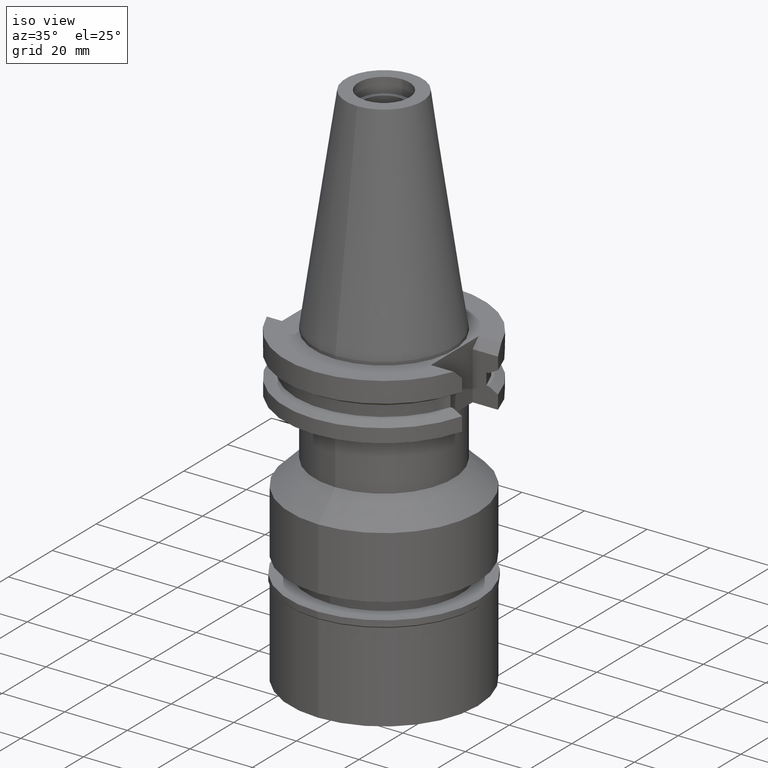
[diagram: clean part render]
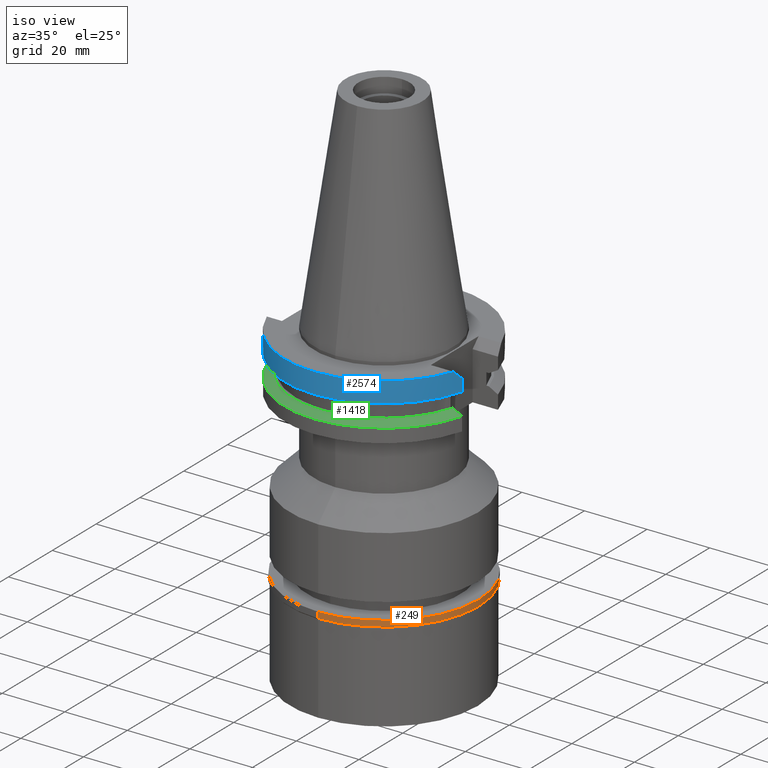
[diagram: same view with three faces highlighted in distinct colors, each labeled with its STEP entity id]
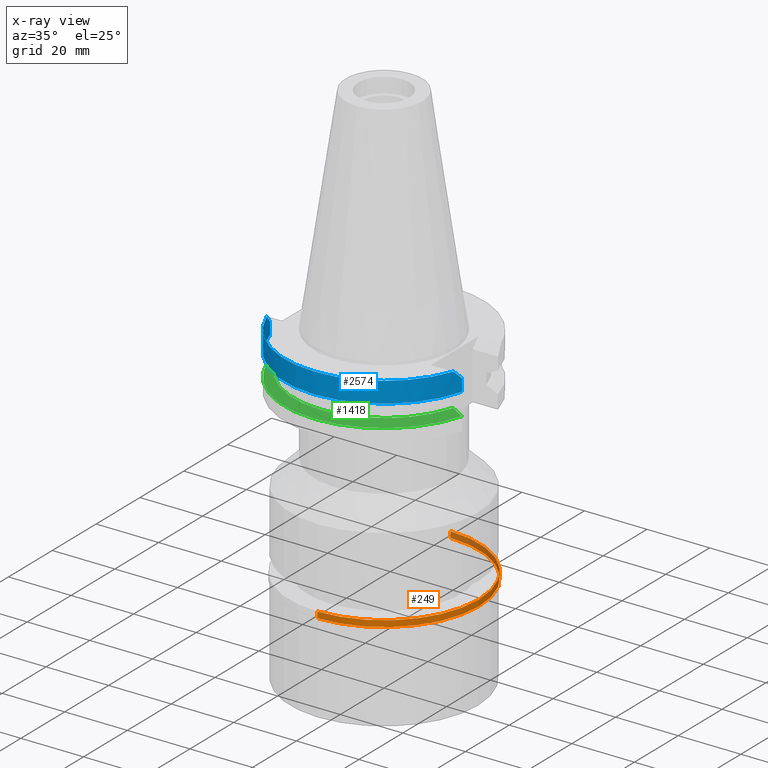
[diagram: x-ray of the same camera — body ghosted, the three highlighted faces saturated]
A machine part, iso view with three faces highlighted in distinct colors.
The next image is the same camera in x-ray (body ghosted, the three faces saturated) — at least one of them is partly hidden behind the body in this view.
Their STEP definitions:

[orange] entity #249 — the highlighted cylindrical surface (partial cylindrical patch) has radius 30.35 mm, axis along (0, 0, -1).
#32 = LINE ( 'NONE', #568, #1230 ) ;
#140 = CYLINDRICAL_SURFACE ( 'NONE', #1263, 30.34999999999999787 ) ;
#249 = ADVANCED_FACE ( 'NONE', ( #2903 ), #140, .T. ) ;
#251 = CARTESIAN_POINT ( 'NONE',  ( 0.0000000000000000000, 0.0000000000000000000, -1.949999999999999956 ) ) ;
#285 = VERTEX_POINT ( 'NONE', #2344 ) ;
#527 = CIRCLE ( 'NONE', #2146, 30.34999999999999787 ) ;
#568 = CARTESIAN_POINT ( 'NONE',  ( 0.0000000000000000000, 30.34999999999999787, 0.0000000000000000000 ) ) ;
#632 = CARTESIAN_POINT ( 'NONE',  ( 0.0000000000000000000, -30.34999999999999787, -1.949999999999999956 ) ) ;
#680 = AXIS2_PLACEMENT_3D ( 'NONE', #251, #2912, #2142 ) ;
#705 = CARTESIAN_POINT ( 'NONE',  ( 0.0000000000000000000, 0.0000000000000000000, 0.0000000000000000000 ) ) ;
#716 = DIRECTION ( 'NONE',  ( 0.0000000000000000000, 0.0000000000000000000, -1.000000000000000000 ) ) ;
#758 = VERTEX_POINT ( 'NONE', #1462 ) ;
#1015 = EDGE_CURVE ( 'NONE', #2753, #758, #527, .T. ) ;
#1118 = DIRECTION ( 'NONE',  ( 0.0000000000000000000, -1.000000000000000000, 0.0000000000000000000 ) ) ;
#1176 = LINE ( 'NONE', #1628, #2471 ) ;
#1195 = EDGE_LOOP ( 'NONE', ( #2543, #2281, #3118, #1926 ) ) ;
#1227 = CARTESIAN_POINT ( 'NONE',  ( 0.0000000000000000000, 30.34999999999999787, 0.0000000000000000000 ) ) ;
#1230 = VECTOR ( 'NONE', #1793, 1000.000000000000000 ) ;
#1263 = AXIS2_PLACEMENT_3D ( 'NONE', #705, #1687, #1118 ) ;
#1267 = EDGE_CURVE ( 'NONE', #2753, #285, #32, .T. ) ;
#1415 = DIRECTION ( 'NONE',  ( 0.0000000000000000000, 0.0000000000000000000, -1.000000000000000000 ) ) ;
#1462 = CARTESIAN_POINT ( 'NONE',  ( 0.0000000000000000000, -30.34999999999999787, 0.0000000000000000000 ) ) ;
#1609 = EDGE_CURVE ( 'NONE', #1995, #285, #2620, .T. ) ;
#1628 = CARTESIAN_POINT ( 'NONE',  ( 0.0000000000000000000, -30.34999999999999787, 0.0000000000000000000 ) ) ;
#1687 = DIRECTION ( 'NONE',  ( 0.0000000000000000000, 0.0000000000000000000, -1.000000000000000000 ) ) ;
#1793 = DIRECTION ( 'NONE',  ( 0.0000000000000000000, 0.0000000000000000000, -1.000000000000000000 ) ) ;
#1884 = CARTESIAN_POINT ( 'NONE',  ( 0.0000000000000000000, 0.0000000000000000000, 0.0000000000000000000 ) ) ;
#1917 = DIRECTION ( 'NONE',  ( 0.0000000000000000000, 1.000000000000000000, 0.0000000000000000000 ) ) ;
#1926 = ORIENTED_EDGE ( 'NONE', *, *, #1267, .F. ) ;
#1995 = VERTEX_POINT ( 'NONE', #632 ) ;
#2142 = DIRECTION ( 'NONE',  ( 0.0000000000000000000, -1.000000000000000000, 0.0000000000000000000 ) ) ;
#2146 = AXIS2_PLACEMENT_3D ( 'NONE', #1884, #1415, #1917 ) ;
#2281 = ORIENTED_EDGE ( 'NONE', *, *, #3135, .T. ) ;
#2344 = CARTESIAN_POINT ( 'NONE',  ( 0.0000000000000000000, 30.34999999999999787, -1.949999999999999956 ) ) ;
#2471 = VECTOR ( 'NONE', #716, 1000.000000000000000 ) ;
#2543 = ORIENTED_EDGE ( 'NONE', *, *, #1015, .T. ) ;
#2620 = CIRCLE ( 'NONE', #680, 30.34999999999999787 ) ;
#2753 = VERTEX_POINT ( 'NONE', #1227 ) ;
#2903 = FACE_OUTER_BOUND ( 'NONE', #1195, .T. ) ;
#2912 = DIRECTION ( 'NONE',  ( 0.0000000000000000000, 0.0000000000000000000, 1.000000000000000000 ) ) ;
#3118 = ORIENTED_EDGE ( 'NONE', *, *, #1609, .T. ) ;
#3135 = EDGE_CURVE ( 'NONE', #758, #1995, #1176, .T. ) ;

[blue] entity #2574 — the highlighted cylindrical surface (partial cylindrical patch) has radius 31.75 mm, axis along (0, 0, -1).
#135 = VERTEX_POINT ( 'NONE', #1135 ) ;
#193 = DIRECTION ( 'NONE',  ( 0.0000000000000000000, 0.0000000000000000000, 1.000000000000000000 ) ) ;
#223 = AXIS2_PLACEMENT_3D ( 'NONE', #721, #696, #959 ) ;
#263 = CARTESIAN_POINT ( 'NONE',  ( 30.67550146397999811, -8.190000606435999586, -7.601327811462999406 ) ) ;
#386 = DIRECTION ( 'NONE',  ( 0.0000000000000000000, -1.000000000000000000, 0.0000000000000000000 ) ) ;
#433 = CIRCLE ( 'NONE', #2470, 31.74999999999998579 ) ;
#450 = EDGE_CURVE ( 'NONE', #2681, #860, #914, .T. ) ;
#570 = LINE ( 'NONE', #1965, #1443 ) ;
#575 = CARTESIAN_POINT ( 'NONE',  ( -29.82399034335000110, -10.89000000000000057, -1.000000000001000089 ) ) ;
#696 = DIRECTION ( 'NONE',  ( 0.0000000000000000000, 0.0000000000000000000, -1.000000000000000000 ) ) ;
#721 = CARTESIAN_POINT ( 'NONE',  ( 0.0000000000000000000, 2.157429649887999992E-14, 76.16750000000000398 ) ) ;
#755 = DIRECTION ( 'NONE',  ( 8.605639806216995609E-09, -3.223182371186998761E-08, 0.9999999999999994449 ) ) ;
#860 = VERTEX_POINT ( 'NONE', #1083 ) ;
#868 = VECTOR ( 'NONE', #755, 1000.000000000000114 ) ;
#914 = CIRCLE ( 'NONE', #1316, 31.75000000000000000 ) ;
#916 = EDGE_CURVE ( 'NONE', #3010, #1625, #570, .T. ) ;
#947 = CARTESIAN_POINT ( 'NONE',  ( 29.82399034335000110, -10.89000000000000057, -1.000000000001000089 ) ) ;
#959 = DIRECTION ( 'NONE',  ( 0.0000000000000000000, -1.000000000000000000, 0.0000000000000000000 ) ) ;
#1021 = CARTESIAN_POINT ( 'NONE',  ( -30.67550165945999652, -8.189999874253000911, -7.601334354651999803 ) ) ;
#1057 = ORIENTED_EDGE ( 'NONE', *, *, #450, .T. ) ;
#1062 = DIRECTION ( 'NONE',  ( -4.150145572782944966E-08, -1.554434098874979866E-07, -0.9999999999999870104 ) ) ;
#1079 = EDGE_CURVE ( 'NONE', #2226, #135, #2444, .T. ) ;
#1083 = CARTESIAN_POINT ( 'NONE',  ( -29.82399034335000110, -10.89000000000000057, -1.000000000001000089 ) ) ;
#1135 = CARTESIAN_POINT ( 'NONE',  ( -30.67550162588999640, -8.189999999999999503, -3.700000000000000178 ) ) ;
#1316 = AXIS2_PLACEMENT_3D ( 'NONE', #2062, #1373, #386 ) ;
#1373 = DIRECTION ( 'NONE',  ( 0.0000000000000000000, 0.0000000000000000000, -1.000000000000000000 ) ) ;
#1443 = VECTOR ( 'NONE', #1062, 1000.000000000000227 ) ;
#1527 = ORIENTED_EDGE ( 'NONE', *, *, #2989, .F. ) ;
#1583 = ORIENTED_EDGE ( 'NONE', *, *, #1591, .F. ) ;
#1591 = EDGE_CURVE ( 'NONE', #2681, #3010, #2861, .T. ) ;
#1625 = VERTEX_POINT ( 'NONE', #263 ) ;
#1694 = CARTESIAN_POINT ( 'NONE',  ( 30.67550162588999640, -8.189999999999999503, -3.700000000000000178 ) ) ;
#1844 = CARTESIAN_POINT ( 'NONE',  ( -30.67550162588999640, -8.189999999999999503, -3.700000000000000178 ) ) ;
#1937 = CARTESIAN_POINT ( 'NONE',  ( 29.82399034335000110, -10.89000000000000057, -1.000000000001000089 ) ) ;
#1965 = CARTESIAN_POINT ( 'NONE',  ( 30.67550162588999640, -8.189999999999999503, -3.700000000000000178 ) ) ;
#1968 = DIRECTION ( 'NONE',  ( -0.9661575315241073270, -0.2579527559055020958, 0.0000000000000000000 ) ) ;
#2062 = CARTESIAN_POINT ( 'NONE',  ( 0.0000000000000000000, 2.157429649887999992E-14, -0.9999999999999000799 ) ) ;
#2115 = EDGE_LOOP ( 'NONE', ( #1583, #1057, #1527, #3093, #2766, #2448 ) ) ;
#2149 = CARTESIAN_POINT ( 'NONE',  ( 30.67550162588999640, -8.189999999999999503, -3.700000000000000178 ) ) ;
#2157 = FACE_OUTER_BOUND ( 'NONE', #2115, .T. ) ;
#2226 = VERTEX_POINT ( 'NONE', #1021 ) ;
#2388 = CARTESIAN_POINT ( 'NONE',  ( 0.0000000000000000000, 1.121722380078999823E-14, -7.601333230925999551 ) ) ;
#2389 = B_SPLINE_CURVE_WITH_KNOTS ( 'NONE', 3,
 ( #1844, #2838, #2594, #575 ),
 .UNSPECIFIED., .F., .F.,
 ( 4, 4 ),
 ( 0.0000000000000000000, 1.000000000000000000 ),
 .UNSPECIFIED. ) ;
#2444 = LINE ( 'NONE', #2955, #868 ) ;
#2448 = ORIENTED_EDGE ( 'NONE', *, *, #916, .F. ) ;
#2457 = CARTESIAN_POINT ( 'NONE',  ( 30.43183015827552396, -9.102667216255303728, -2.787332783744696840 ) ) ;
#2470 = AXIS2_PLACEMENT_3D ( 'NONE', #2388, #193, #1968 ) ;
#2574 = ADVANCED_FACE ( 'NONE', ( #2157 ), #2615, .T. ) ;
#2594 = CARTESIAN_POINT ( 'NONE',  ( -30.14799306409551960, -10.00266721625513888, -1.887332783744861908 ) ) ;
#2615 = CYLINDRICAL_SURFACE ( 'NONE', #223, 31.75000000000000000 ) ;
#2681 = VERTEX_POINT ( 'NONE', #947 ) ;
#2725 = EDGE_CURVE ( 'NONE', #2226, #1625, #433, .T. ) ;
#2766 = ORIENTED_EDGE ( 'NONE', *, *, #2725, .T. ) ;
#2838 = CARTESIAN_POINT ( 'NONE',  ( -30.43183015827552040, -9.102667216255303728, -2.787332783744696840 ) ) ;
#2861 = B_SPLINE_CURVE_WITH_KNOTS ( 'NONE', 3,
 ( #1937, #2897, #2457, #1694 ),
 .UNSPECIFIED., .F., .F.,
 ( 4, 4 ),
 ( 0.0000000000000000000, 1.000000000000000000 ),
 .UNSPECIFIED. ) ;
#2897 = CARTESIAN_POINT ( 'NONE',  ( 30.14799306409552671, -10.00266721625513888, -1.887332783744861908 ) ) ;
#2955 = CARTESIAN_POINT ( 'NONE',  ( -30.67550165945999652, -8.189999874253000911, -7.601334354651999803 ) ) ;
#2989 = EDGE_CURVE ( 'NONE', #135, #860, #2389, .T. ) ;
#3010 = VERTEX_POINT ( 'NONE', #2149 ) ;
#3093 = ORIENTED_EDGE ( 'NONE', *, *, #1079, .F. ) ;

[green] entity #1418 — the highlighted conical surface has half-angle 60 deg.
#53 = VERTEX_POINT ( 'NONE', #2049 ) ;
#237 = CARTESIAN_POINT ( 'NONE',  ( -27.78617704743999894, -8.189999360204000212, -13.04749999999999943 ) ) ;
#265 = EDGE_CURVE ( 'NONE', #693, #53, #2868, .T. ) ;
#271 = CARTESIAN_POINT ( 'NONE',  ( 27.78616453852999868, -8.190000190918999223, -13.04749999999999943 ) ) ;
#410 = CARTESIAN_POINT ( 'NONE',  ( 0.0000000000000000000, 1.055026073064999954E-14, -13.85058338454000015 ) ) ;
#416 = ORIENTED_EDGE ( 'NONE', *, *, #2810, .F. ) ;
#501 = CARTESIAN_POINT ( 'NONE',  ( 30.67550146397999811, -8.190000606430000829, -14.65367218825000073 ) ) ;
#693 = VERTEX_POINT ( 'NONE', #2851 ) ;
#893 = DIRECTION ( 'NONE',  ( 0.0000000000000000000, 0.0000000000000000000, -1.000000000000000000 ) ) ;
#949 = CARTESIAN_POINT ( 'NONE',  ( -29.69463352125000100, -8.189999973377000586, -14.10691908956000162 ) ) ;
#992 = CARTESIAN_POINT ( 'NONE',  ( 0.0000000000000000000, 1.055026073064999954E-14, -14.65366676908000088 ) ) ;
#1003 = ORIENTED_EDGE ( 'NONE', *, *, #265, .T. ) ;
#1074 = ORIENTED_EDGE ( 'NONE', *, *, #2726, .F. ) ;
#1145 = FACE_OUTER_BOUND ( 'NONE', #1579, .T. ) ;
#1184 = CARTESIAN_POINT ( 'NONE',  ( -30.34685211323999710, -8.189999874250000644, -14.47034121054999822 ) ) ;
#1240 = CARTESIAN_POINT ( 'NONE',  ( 30.34684598100999864, -8.190000606430000829, -14.47034444536000031 ) ) ;
#1269 = CARTESIAN_POINT ( 'NONE',  ( 29.69463186846000013, -8.189999742455000842, -14.10691550687000095 ) ) ;
#1355 = VERTEX_POINT ( 'NONE', #2809 ) ;
#1370 = B_SPLINE_CURVE_WITH_KNOTS ( 'NONE', 3,
 ( #2378, #1184, #949, #2408, #3112, #237 ),
 .UNSPECIFIED., .F., .F.,
 ( 4, 1, 1, 4 ),
 ( 0.0000000000000000000, 0.3333333333333000081, 0.6666666666667000474, 1.000000000000000000 ),
 .UNSPECIFIED. ) ;
#1403 = CIRCLE ( 'NONE', #3140, 31.74999999999998579 ) ;
#1404 = DIRECTION ( 'NONE',  ( 0.0000000000000000000, -1.000000000000000000, 0.0000000000000000000 ) ) ;
#1418 = ADVANCED_FACE ( 'NONE', ( #1145 ), #1542, .T. ) ;
#1542 = CONICAL_SURFACE ( 'NONE', #2931, 30.35901877526999826, 1.047197551196400456 ) ;
#1579 = EDGE_LOOP ( 'NONE', ( #1074, #1003, #2156, #416 ) ) ;
#1669 = B_SPLINE_CURVE_WITH_KNOTS ( 'NONE', 3,
 ( #271, #2992, #2960, #1269, #1240, #1717 ),
 .UNSPECIFIED., .F., .F.,
 ( 4, 1, 1, 4 ),
 ( 0.0000000000000000000, 0.3333333333333000081, 0.6666666666667000474, 1.000000000000000000 ),
 .UNSPECIFIED. ) ;
#1717 = CARTESIAN_POINT ( 'NONE',  ( 30.67550146397999811, -8.190000606430000829, -14.65367218825000073 ) ) ;
#1879 = AXIS2_PLACEMENT_3D ( 'NONE', #3094, #893, #2859 ) ;
#1980 = DIRECTION ( 'NONE',  ( 0.0000000000000000000, 0.0000000000000000000, -1.000000000000000000 ) ) ;
#2049 = CARTESIAN_POINT ( 'NONE',  ( -27.78617704743999894, -8.189999360204000212, -13.04749999999999943 ) ) ;
#2156 = ORIENTED_EDGE ( 'NONE', *, *, #2163, .F. ) ;
#2163 = EDGE_CURVE ( 'NONE', #1355, #53, #1370, .T. ) ;
#2176 = VERTEX_POINT ( 'NONE', #501 ) ;
#2378 = CARTESIAN_POINT ( 'NONE',  ( -30.67550165945999652, -8.189999874250000644, -14.65366564536000205 ) ) ;
#2408 = CARTESIAN_POINT ( 'NONE',  ( -28.73153504609999942, -8.190000281805000171, -13.57151191714000049 ) ) ;
#2726 = EDGE_CURVE ( 'NONE', #693, #2176, #1669, .T. ) ;
#2739 = DIRECTION ( 'NONE',  ( 0.9661575315241073270, -0.2579527559055020958, 0.0000000000000000000 ) ) ;
#2809 = CARTESIAN_POINT ( 'NONE',  ( -30.67550165945999652, -8.189999874250000644, -14.65366564536000205 ) ) ;
#2810 = EDGE_CURVE ( 'NONE', #2176, #1355, #1403, .T. ) ;
#2830 = DIRECTION ( 'NONE',  ( 0.0000000000000000000, 0.0000000000000000000, -1.000000000000000000 ) ) ;
#2851 = CARTESIAN_POINT ( 'NONE',  ( 27.78616453852999868, -8.190000190918999223, -13.04749999999999943 ) ) ;
#2859 = DIRECTION ( 'NONE',  ( 0.0000000000000000000, -1.000000000000000000, 0.0000000000000000000 ) ) ;
#2868 = CIRCLE ( 'NONE', #1879, 28.96803755052999918 ) ;
#2931 = AXIS2_PLACEMENT_3D ( 'NONE', #410, #2830, #1404 ) ;
#2960 = CARTESIAN_POINT ( 'NONE',  ( 28.73152984912999841, -8.189999991762000775, -13.57150619388000123 ) ) ;
#2992 = CARTESIAN_POINT ( 'NONE',  ( 28.09960208757999922, -8.190000190918999223, -13.22108011267000016 ) ) ;
#3094 = CARTESIAN_POINT ( 'NONE',  ( 0.0000000000000000000, 1.055026073064999954E-14, -13.04749999999999943 ) ) ;
#3112 = CARTESIAN_POINT ( 'NONE',  ( -28.09960227012999923, -8.189999360204000212, -13.22107329097999973 ) ) ;
#3140 = AXIS2_PLACEMENT_3D ( 'NONE', #992, #1980, #2739 ) ;